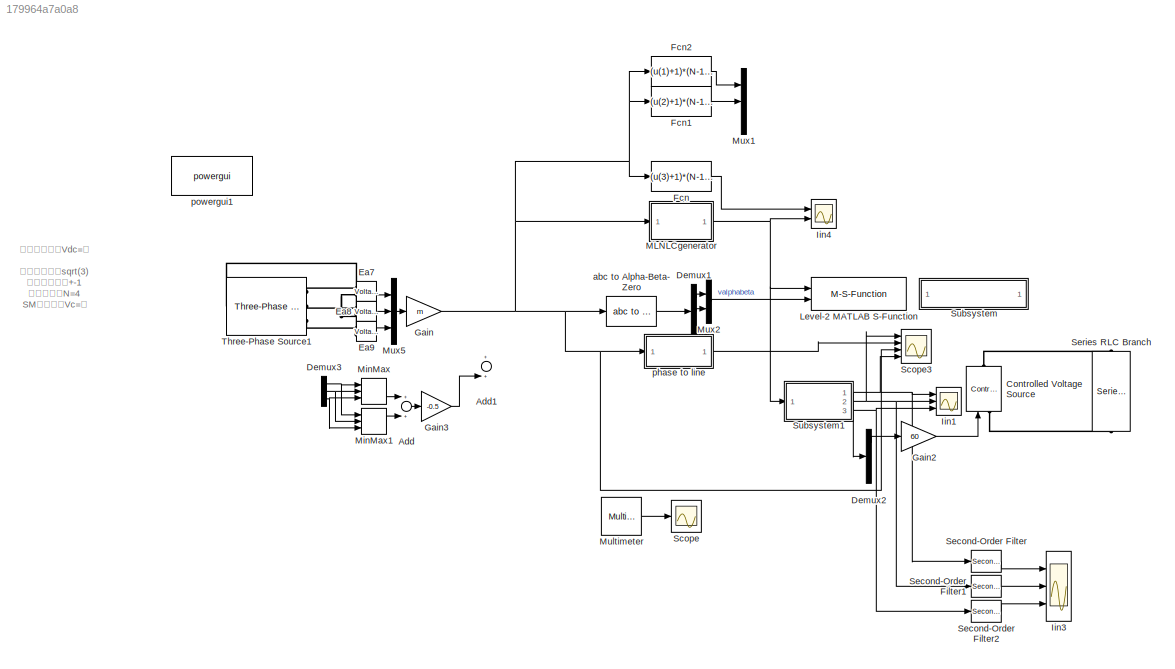
MODEL slx_179964a7a0a8
KIND model
CONFIG AbsTol = auto
CONFIG EnableMultiTasking = on
CONFIG FixedStep = auto
CONFIG MaxStep = auto
CONFIG MinStep = auto
CONFIG RelTol = 1e-3
CONFIG SampleTimeConstraint = Unconstrained
CONFIG Solver = ode45
CONFIG SolverName = ode45
CONFIG StartTime = 0.0
CONFIG StopTime = 0.02
BLOCK [Sum] Add
  Commented = on
  InputSameDT = off
  OutDataTypeStr = Inherit: Inherit via internal rule
  Ports = [2, 1]
  SaturateOnIntegerOverflow = off
BLOCK [Sum] Add1
  Commented = on
  InputSameDT = off
  OutDataTypeStr = Inherit: Inherit via internal rule
  Ports = [2, 1]
  SaturateOnIntegerOverflow = off
BLOCK [Reference] Controlled Voltage Source  REF=powerlib/Electrical
Sources/Controlled Voltage Source
  Commented = on
  Ports = [1, 0, 0, 0, 0, 1, 1]
  SourceBlock = powerlib/Electrical\nSources/Controlled Voltage Source
  SourceProductBaseCode = PS
  SourceProductName = Simscape Power Systems
  SourceType = Controlled Voltage Source
BLOCK [Demux] Demux1
  DisplayOption = bar
  Outputs = 3
  Ports = [1, 3]
BLOCK [Demux] Demux2
  Commented = on
  DisplayOption = bar
  Outputs = 3
  Ports = [1, 3]
BLOCK [Demux] Demux3
  Commented = on
  DisplayOption = bar
  Outputs = 3
  Ports = [1, 3]
BLOCK [Reference] Ea7  REF=powerlib/Measurements/Voltage Measurement
  Ports = [0, 1, 0, 0, 0, 2]
  SourceBlock = powerlib/Measurements/Voltage Measurement
  SourceProductBaseCode = PS
  SourceProductName = Simscape Power Systems
  SourceType = Voltage Measurement
BLOCK [Reference] Ea8  REF=powerlib/Measurements/Voltage Measurement
  Ports = [0, 1, 0, 0, 0, 2]
  SourceBlock = powerlib/Measurements/Voltage Measurement
  SourceProductBaseCode = PS
  SourceProductName = Simscape Power Systems
  SourceType = Voltage Measurement
BLOCK [Reference] Ea9  REF=powerlib/Measurements/Voltage Measurement
  Ports = [0, 1, 0, 0, 0, 2]
  SourceBlock = powerlib/Measurements/Voltage Measurement
  SourceProductBaseCode = PS
  SourceProductName = Simscape Power Systems
  SourceType = Voltage Measurement
BLOCK [Fcn] Fcn
  Commented = on
  Expr = (u(3)+1)*(N-1)/2
BLOCK [Fcn] Fcn1
  Commented = on
  Expr = (u(2)+1)*(N-1)/2
BLOCK [Fcn] Fcn2
  Commented = on
  Expr = (u(1)+1)*(N-1)/2
BLOCK [Gain] Gain
  Gain = m
  OutDataTypeStr = Inherit: Inherit via internal rule
  ParamDataTypeStr = Inherit: Inherit via internal rule
  SaturateOnIntegerOverflow = off
BLOCK [Gain] Gain2
  Commented = on
  Gain = 60
  OutDataTypeStr = Inherit: Inherit via internal rule
  ParamDataTypeStr = Inherit: Inherit via internal rule
  SaturateOnIntegerOverflow = off
BLOCK [Gain] Gain3
  Commented = on
  Gain = -0.5
  OutDataTypeStr = Inherit: Inherit via internal rule
  ParamDataTypeStr = Inherit: Inherit via internal rule
  SaturateOnIntegerOverflow = off
BLOCK [Scope] Iin1
  NumInputPorts = 3
  Ports = [3]
  ScopeSpecificationString = Simulink.scopes.TimeScopeBlockCfg('CurrentConfiguration', extmgr.ConfigurationSet(extmgr.Configuration('Core','General UI',true),extmgr.Configuration('Core','Source UI',true),extmgr.Configuration('Sources','WiredSimulink',true,'DataLoggingVariableName','NLCoutput','DataLoggingSaveFormat','StructureWithTime','DataLoggingDecimation','1','DataLoggingDecimateData',true,'DataLogging',true),extmgr.Confi...<+2291ch>
BLOCK [Scope] Iin3
  NumInputPorts = 3
  Ports = [3]
  ScopeSpecificationString = Simulink.scopes.TimeScopeBlockCfg('CurrentConfiguration', extmgr.ConfigurationSet(extmgr.Configuration('Core','General UI',true),extmgr.Configuration('Core','Source UI',true),extmgr.Configuration('Sources','WiredSimulink',true,'DataLoggingVariableName','NLCoutput_Filtered','DataLoggingSaveFormat','StructureWithTime','DataLoggingDecimation','1','DataLoggingDecimateData',true,'DataLogging',true),ext...<+2343ch>
BLOCK [Scope] Iin4
  Commented = on
  NumInputPorts = 2
  Ports = [2]
  ScopeSpecificationString = Simulink.scopes.TimeScopeBlockCfg('CurrentConfiguration', extmgr.ConfigurationSet(extmgr.Configuration('Core','General UI',true),extmgr.Configuration('Core','Source UI',true),extmgr.Configuration('Sources','WiredSimulink',true,'DataLoggingVariableName','pdpwmoutput','DataLoggingSaveFormat','StructureWithTime','DataLoggingDecimation','1','DataLoggingDecimateData',true),extmgr.Configuration('Visuals...<+2810ch>
BLOCK [M-S-Function] Level-2 MATLAB S-Function
  FunctionName = PlotSpaceVector
  Parameters = level, vdc, rate, normalized, plot, hexagon, sw, disabled
  Ports = [2]
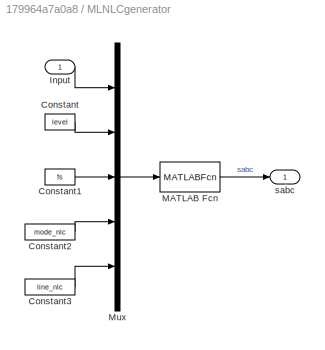
BLOCK [SubSystem] MLNLCgenerator
  Ports = [1, 1]
  RequestExecContextInheritance = off
  Variant = off
BLOCK [Constant] MLNLCgenerator/Constant
  Value = level
BLOCK [Constant] MLNLCgenerator/Constant1
  Value = fs
BLOCK [Constant] MLNLCgenerator/Constant2
  Value = mode_nlc
BLOCK [Constant] MLNLCgenerator/Constant3
  Value = line_nlc
BLOCK [Inport] MLNLCgenerator/Input
  IconDisplay = Port number
BLOCK [MATLABFcn] MLNLCgenerator/MATLAB Fcn
  MATLABFcn = MLNLC_m
  OutputSignalType = real
  Ports = [1, 1]
BLOCK [Mux] MLNLCgenerator/Mux
  DisplayOption = bar
  Inputs = 5
  Ports = [5, 1]
BLOCK [Outport] MLNLCgenerator/sabc
  IconDisplay = Port number
BLOCK [MinMax] MinMax
  Commented = on
  Function = max
  InputSameDT = off
  Inputs = 3
  Ports = [3, 1]
  SaturateOnIntegerOverflow = off
BLOCK [MinMax] MinMax1
  Commented = on
  InputSameDT = off
  Inputs = 3
  Ports = [3, 1]
  SaturateOnIntegerOverflow = off
BLOCK [Reference] Multimeter  REF=powerlib/Measurements/Multimeter
  Commented = on
  Ports = [0, 1]
  SourceBlock = powerlib/Measurements/Multimeter
  SourceProductBaseCode = PS
  SourceProductName = Simscape Power Systems
  SourceType = MultimeterPSB
BLOCK [Mux] Mux1
  Commented = on
  DisplayOption = bar
  Inputs = 3
  Ports = [3, 1]
BLOCK [Mux] Mux2
  DisplayOption = bar
  Inputs = 2
  Ports = [2, 1]
BLOCK [Mux] Mux5
  DisplayOption = bar
  Inputs = 3
  Ports = [3, 1]
BLOCK [Scope] Scope
  Commented = on
  NumInputPorts = 1
  Ports = [1]
  ScopeSpecificationString = Simulink.scopes.TimeScopeBlockCfg('CurrentConfiguration', extmgr.ConfigurationSet(extmgr.Configuration('Core','General UI',true),extmgr.Configuration('Core','Source UI',true),extmgr.Configuration('Sources','WiredSimulink',true,'DataLoggingVariableName','ScopeData1'),extmgr.Configuration('Visuals','Time Domain',true),extmgr.Configuration('Tools','Plot Navigation',true),extmgr.Configuration('Tools',...<+40ch>
BLOCK [Scope] Scope3
  NumInputPorts = 4
  Ports = [4]
  ScopeSpecificationString = Simulink.scopes.TimeScopeBlockCfg('CurrentConfiguration', extmgr.ConfigurationSet(extmgr.Configuration('Core','General UI',true),extmgr.Configuration('Core','Source UI',true),extmgr.Configuration('Sources','WiredSimulink',true,'DataLoggingVariableName','sa','DataLogging',true,'DataLoggingSaveFormat','StructureWithTime'),extmgr.Configuration('Visuals','Time Domain',true,'SerializedDisplays',{struct...<+1926ch>
BLOCK [Reference] Second-Order Filter  REF=powerlib_meascontrol/Filters/Second-Order
Filter
  Ports = [1, 1]
  SourceBlock = powerlib_meascontrol/Filters/Second-Order\nFilter
  SourceProductBaseCode = PS
  SourceProductName = Simscape Power Systems
  SourceType = Second-Order Filter
BLOCK [Reference] Second-Order Filter1  REF=powerlib_meascontrol/Filters/Second-Order
Filter
  Ports = [1, 1]
  SourceBlock = powerlib_meascontrol/Filters/Second-Order\nFilter
  SourceProductBaseCode = PS
  SourceProductName = Simscape Power Systems
  SourceType = Second-Order Filter
BLOCK [Reference] Second-Order Filter2  REF=powerlib_meascontrol/Filters/Second-Order
Filter
  Ports = [1, 1]
  SourceBlock = powerlib_meascontrol/Filters/Second-Order\nFilter
  SourceProductBaseCode = PS
  SourceProductName = Simscape Power Systems
  SourceType = Second-Order Filter
BLOCK [Reference] Series RLC Branch  REF=powerlib/Elements/Series RLC Branch
  Commented = on
  Ports = [0, 0, 0, 0, 0, 1, 1]
  SourceBlock = powerlib/Elements/Series RLC Branch
  SourceProductBaseCode = PS
  SourceProductName = Simscape Power Systems
  SourceType = Series RLC Branch
BLOCK [SubSystem] Subsystem
  AttributesFormatString = \n
  OpenFcn = open('<path>')
  Ports = []
  RequestExecContextInheritance = off
  Variant = off
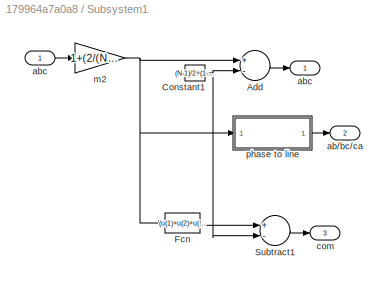
BLOCK [SubSystem] Subsystem1
  Ports = [1, 3]
  RequestExecContextInheritance = off
  Variant = off
BLOCK [Sum] Subsystem1/Add
  InputSameDT = off
  Inputs = +-
  OutDataTypeStr = Inherit: Inherit via internal rule
  Ports = [2, 1]
  SaturateOnIntegerOverflow = off
BLOCK [Constant] Subsystem1/Constant1
  Value = (N-1)/2+(1-(N-1)/2)*normal
BLOCK [Fcn] Subsystem1/Fcn
  Expr = (u(1)+u(2)+u(3))/3
BLOCK [Sum] Subsystem1/Subtract1
  InputSameDT = off
  Inputs = +-
  OutDataTypeStr = Inherit: Inherit via internal rule
  Ports = [2, 1]
  SaturateOnIntegerOverflow = off
BLOCK [Outport] Subsystem1/ab//bc//ca
  IconDisplay = Port number
  Port = 2
BLOCK [Outport] Subsystem1/abc
  IconDisplay = Port number
BLOCK [Inport] Subsystem1/abc 
  IconDisplay = Port number
BLOCK [Outport] Subsystem1/com
  IconDisplay = Port number
  Port = 3
BLOCK [Gain] Subsystem1/m2
  Gain = 1+(2/(N-1)-1)*normal
  OutDataTypeStr = Inherit: Inherit via internal rule
  ParamDataTypeStr = Inherit: Inherit via internal rule
  SaturateOnIntegerOverflow = off
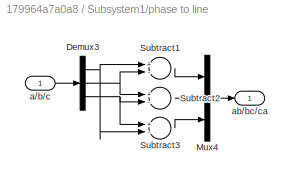
BLOCK [SubSystem] Subsystem1/phase to line
  Ports = [1, 1]
  RequestExecContextInheritance = off
  Variant = off
BLOCK [Demux] Subsystem1/phase to line/Demux3
  DisplayOption = bar
  Outputs = 3
  Ports = [1, 3]
BLOCK [Mux] Subsystem1/phase to line/Mux4
  DisplayOption = bar
  Inputs = 3
  Ports = [3, 1]
BLOCK [Sum] Subsystem1/phase to line/Subtract1
  InputSameDT = off
  Inputs = +-
  OutDataTypeStr = Inherit: Inherit via internal rule
  Ports = [2, 1]
  SaturateOnIntegerOverflow = off
BLOCK [Sum] Subsystem1/phase to line/Subtract2
  InputSameDT = off
  Inputs = +-
  OutDataTypeStr = Inherit: Inherit via internal rule
  Ports = [2, 1]
  SaturateOnIntegerOverflow = off
BLOCK [Sum] Subsystem1/phase to line/Subtract3
  InputSameDT = off
  Inputs = +-
  OutDataTypeStr = Inherit: Inherit via internal rule
  Ports = [2, 1]
  SaturateOnIntegerOverflow = off
BLOCK [Inport] Subsystem1/phase to line/a//b//c
  IconDisplay = Port number
BLOCK [Outport] Subsystem1/phase to line/ab//bc//ca
  IconDisplay = Port number
BLOCK [Reference] Three-Phase Source1  REF=powerlib/Electrical
Sources/Three-Phase Source
  Ports = [0, 0, 0, 0, 0, 1, 3]
  SourceBlock = powerlib/Electrical\nSources/Three-Phase Source
  SourceProductBaseCode = PS
  SourceProductName = Simscape Power Systems
  SourceType = Three-Phase Source
BLOCK [Reference] abc to Alpha-Beta-Zero  REF=powerlib_meascontrol/Transformations/abc to
Alpha-Beta-Zero
  Ports = [1, 1]
  SourceBlock = powerlib_meascontrol/Transformations/abc to\nAlpha-Beta-Zero
  SourceProductBaseCode = PS
  SourceProductName = Simscape Power Systems
  SourceType = abc to Alpha-Beta-Zero Transformation
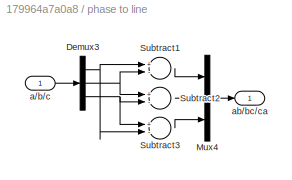
BLOCK [SubSystem] phase to line
  Ports = [1, 1]
  RequestExecContextInheritance = off
  Variant = off
BLOCK [Demux] phase to line/Demux3
  DisplayOption = bar
  Outputs = 3
  Ports = [1, 3]
BLOCK [Mux] phase to line/Mux4
  DisplayOption = bar
  Inputs = 3
  Ports = [3, 1]
BLOCK [Sum] phase to line/Subtract1
  InputSameDT = off
  Inputs = +-
  OutDataTypeStr = Inherit: Inherit via internal rule
  Ports = [2, 1]
  SaturateOnIntegerOverflow = off
BLOCK [Sum] phase to line/Subtract2
  InputSameDT = off
  Inputs = +-
  OutDataTypeStr = Inherit: Inherit via internal rule
  Ports = [2, 1]
  SaturateOnIntegerOverflow = off
BLOCK [Sum] phase to line/Subtract3
  InputSameDT = off
  Inputs = +-
  OutDataTypeStr = Inherit: Inherit via internal rule
  Ports = [2, 1]
  SaturateOnIntegerOverflow = off
BLOCK [Inport] phase to line/a//b//c
  IconDisplay = Port number
BLOCK [Outport] phase to line/ab//bc//ca
  IconDisplay = Port number
BLOCK [Reference] powergui1  REF=powerlib/powergui
  Ports = []
  Priority = 1
  SourceBlock = powerlib/powergui
  SourceProductBaseCode = PS
  SourceProductName = Simscape Power Systems
  SourceType = PSB option menu block
ANNOTATION (root): 直流母线电压Vdc=？ 输出线电压：sqrt(3) 输出相电压：+-1 桥臂子模块N=4 SM电容电压Vc=？ 开关频率fs=5kHz
LINE Add:1 -> Gain3:1
LINE Demux1:1 -> Mux2:1
LINE Demux1:2 -> Mux2:2
LINE Demux2:1 -> Gain2:1
NET Demux3:1 -> MinMax1:1, MinMax:1
NET Demux3:2 -> MinMax1:2, MinMax:2
NET Demux3:3 -> MinMax1:3, MinMax:3
LINE Ea7:1 -> Mux5:1
LINE Ea8:1 -> Mux5:2
LINE Ea9:1 -> Mux5:3
LINE Fcn1:1 -> Mux1:2
LINE Fcn2:1 -> Mux1:1
LINE Fcn:1 -> Iin4:1
LINE Gain2:1 -> Controlled Voltage Source:1
LINE Gain3:1 -> Add1:2
NET Gain:1 -> Fcn1:1, Fcn2:1, Fcn:1, MLNLCgenerator:1, Scope3:3, abc to Alpha-Beta-Zero:1, phase to line:1
LINE MLNLCgenerator/Constant1:1 -> MLNLCgenerator/Mux:3
LINE MLNLCgenerator/Constant2:1 -> MLNLCgenerator/Mux:4
LINE MLNLCgenerator/Constant3:1 -> MLNLCgenerator/Mux:5
LINE MLNLCgenerator/Constant:1 -> MLNLCgenerator/Mux:2
LINE MLNLCgenerator/Input:1 -> MLNLCgenerator/Mux:1
LINE MLNLCgenerator/MATLAB Fcn:1 -> MLNLCgenerator/sabc:1
LINE MLNLCgenerator/Mux:1 -> MLNLCgenerator/MATLAB Fcn:1
NET MLNLCgenerator:1 -> Iin4:2, Level-2 MATLAB S-Function:1, Subsystem1:1
LINE MinMax1:1 -> Add:2
LINE MinMax:1 -> Add:1
LINE Multimeter:1 -> Scope:1
LINE Mux2:1 -> Level-2 MATLAB S-Function:2
LINE Mux5:1 -> Gain:1
LINE Second-Order Filter1:1 -> Iin3:2
LINE Second-Order Filter2:1 -> Iin3:3
LINE Second-Order Filter:1 -> Iin3:1
LINE Subsystem1/Add:1 -> Subsystem1/abc:1
NET Subsystem1/Constant1:1 -> Subsystem1/Add:2, Subsystem1/Subtract1:2
LINE Subsystem1/Fcn:1 -> Subsystem1/Subtract1:1
LINE Subsystem1/Subtract1:1 -> Subsystem1/com:1
LINE Subsystem1/abc :1 -> Subsystem1/m2:1
NET Subsystem1/m2:1 -> Subsystem1/Add:1, Subsystem1/Fcn:1, Subsystem1/phase to line:1
NET Subsystem1/phase to line/Demux3:1 -> Subsystem1/phase to line/Subtract1:1, Subsystem1/phase to line/Subtract3:2
NET Subsystem1/phase to line/Demux3:2 -> Subsystem1/phase to line/Subtract1:2, Subsystem1/phase to line/Subtract2:1
NET Subsystem1/phase to line/Demux3:3 -> Subsystem1/phase to line/Subtract2:2, Subsystem1/phase to line/Subtract3:1
LINE Subsystem1/phase to line/Mux4:1 -> Subsystem1/phase to line/ab//bc//ca:1
LINE Subsystem1/phase to line/Subtract1:1 -> Subsystem1/phase to line/Mux4:1
LINE Subsystem1/phase to line/Subtract2:1 -> Subsystem1/phase to line/Mux4:2
LINE Subsystem1/phase to line/Subtract3:1 -> Subsystem1/phase to line/Mux4:3
LINE Subsystem1/phase to line/a//b//c:1 -> Subsystem1/phase to line/Demux3:1
LINE Subsystem1/phase to line:1 -> Subsystem1/ab//bc//ca:1
NET Subsystem1:1 -> Demux2:1, Iin1:1, Scope3:4, Second-Order Filter:1
NET Subsystem1:2 -> Iin1:2, Scope3:1, Second-Order Filter1:1
NET Subsystem1:3 -> Iin1:3, Second-Order Filter2:1
LINE abc to Alpha-Beta-Zero:1 -> Demux1:1
NET phase to line/Demux3:1 -> phase to line/Subtract1:1, phase to line/Subtract3:2
NET phase to line/Demux3:2 -> phase to line/Subtract1:2, phase to line/Subtract2:1
NET phase to line/Demux3:3 -> phase to line/Subtract2:2, phase to line/Subtract3:1
LINE phase to line/Mux4:1 -> phase to line/ab//bc//ca:1
LINE phase to line/Subtract1:1 -> phase to line/Mux4:1
LINE phase to line/Subtract2:1 -> phase to line/Mux4:2
LINE phase to line/Subtract3:1 -> phase to line/Mux4:3
LINE phase to line/a//b//c:1 -> phase to line/Demux3:1
LINE phase to line:1 -> Scope3:2
PLINE Controlled Voltage Source:LConn1 -- Series RLC Branch:RConn1
PLINE Controlled Voltage Source:RConn1 -- Series RLC Branch:LConn1
PLINE Ea7:LConn1 -- Three-Phase Source1:RConn1
PNET net1: Ea7:LConn2 -- Ea8:LConn2 -- Ea9:LConn2 -- Three-Phase Source1:LConn1
PLINE Ea8:LConn1 -- Three-Phase Source1:RConn2
PLINE Ea9:LConn1 -- Three-Phase Source1:RConn3
note: NET lines group one-source signal fan-out (src -> all destinations, sorted); 1:1 wires keep LINE; PNET lines group multi-terminal physical nets as a canonical sorted terminal list (undirected conserving connections); 2-terminal nets keep the pairwise PLINE form
note: 1 file-system path scrubbed to <path> (not preserved elsewhere — flat text is the only slx artifact)
